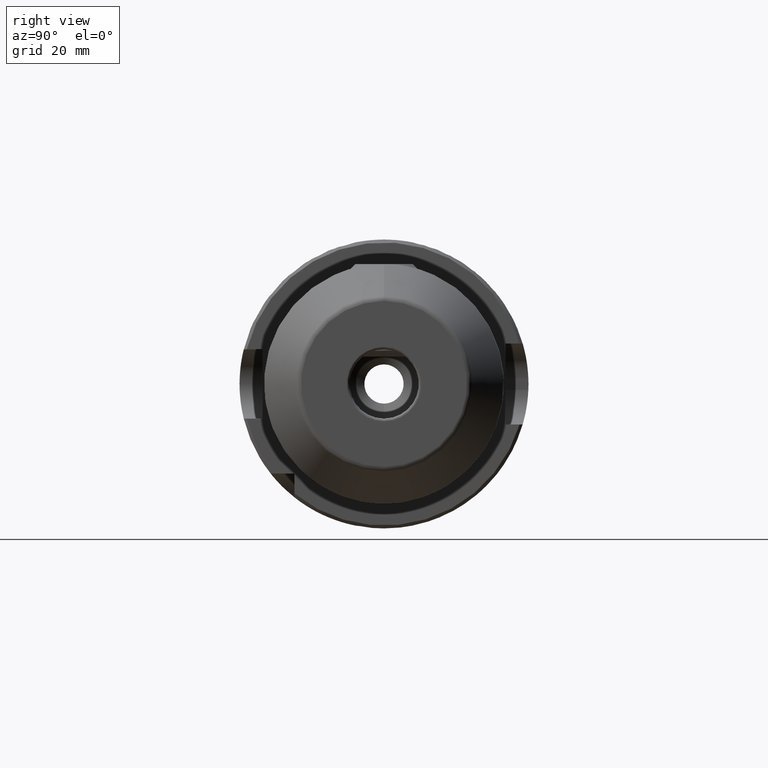
[diagram: clean part render]
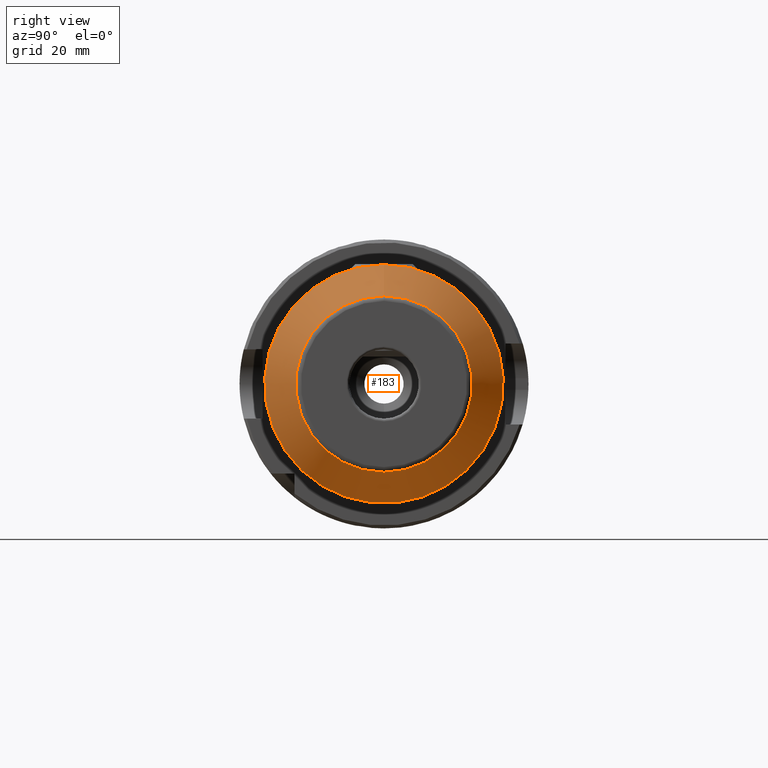
[diagram: same view with one face highlighted and labeled with its STEP entity id]
A machine part, right view. The second image highlights one B-rep face of the part: STEP entity #183.
In plain terms, the highlighted conical surface has half-angle 25 deg.
Its self-contained STEP definition (entity closure, byte-faithful):
#183 = ADVANCED_FACE( '', ( #509, #510 ), #511, .T. );
#509 = FACE_OUTER_BOUND( '', #1036, .T. );
#510 = FACE_BOUND( '', #1037, .T. );
#511 = CONICAL_SURFACE( '', #1038, 15.2692375262291, 0.436332312998582 );
#1036 = EDGE_LOOP( '', ( #1556 ) );
#1037 = EDGE_LOOP( '', ( #1557 ) );
#1038 = AXIS2_PLACEMENT_3D( '', #1558, #1559, #1560 );
#1556 = ORIENTED_EDGE( '', *, *, #2825, .F. );
#1557 = ORIENTED_EDGE( '', *, *, #2826, .T. );
#1558 = CARTESIAN_POINT( '', ( 79.4226182617407, 0.000000000000000, 0.000000000000000 ) );
#1559 = DIRECTION( '', ( -1.00000000000000, 0.000000000000000, -0.000000000000000 ) );
#1560 = DIRECTION( '', ( 0.000000000000000, 0.000000000000000, 1.00000000000000 ) );
#2825 = EDGE_CURVE( '', #3313, #3313, #3314, .T. );
#2826 = EDGE_CURVE( '', #3315, #3315, #3316, .T. );
#3313 = VERTEX_POINT( '', #4040 );
#3314 = CIRCLE( '', #4041, 20.6563077870366 );
#3315 = VERTEX_POINT( '', #4042 );
#3316 = CIRCLE( '', #4043, 15.2692375262291 );
#4040 = CARTESIAN_POINT( '', ( 67.8700088061678, 0.000000000000000, 20.6563077870366 ) );
#4041 = AXIS2_PLACEMENT_3D( '', #6081, #6082, #6083 );
#4042 = CARTESIAN_POINT( '', ( 79.4226182617407, 0.000000000000000, 15.2692375262291 ) );
#4043 = AXIS2_PLACEMENT_3D( '', #6084, #6085, #6086 );
#6081 = CARTESIAN_POINT( '', ( 67.8700088061678, 0.000000000000000, 0.000000000000000 ) );
#6082 = DIRECTION( '', ( -1.00000000000000, 0.000000000000000, 0.000000000000000 ) );
#6083 = DIRECTION( '', ( 0.000000000000000, 0.000000000000000, 1.00000000000000 ) );
#6084 = CARTESIAN_POINT( '', ( 79.4226182617407, 0.000000000000000, 0.000000000000000 ) );
#6085 = DIRECTION( '', ( -1.00000000000000, 0.000000000000000, 0.000000000000000 ) );
#6086 = DIRECTION( '', ( 0.000000000000000, 0.000000000000000, 1.00000000000000 ) );